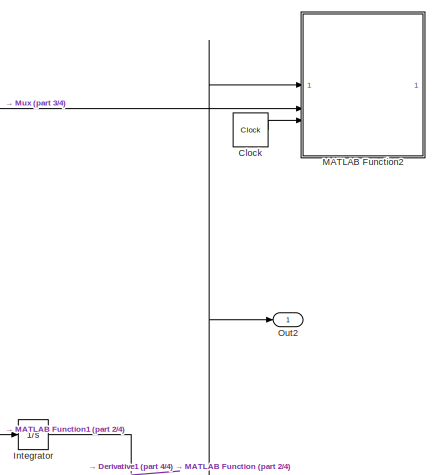
[diagram: root canvas - part 1/4, top right region]
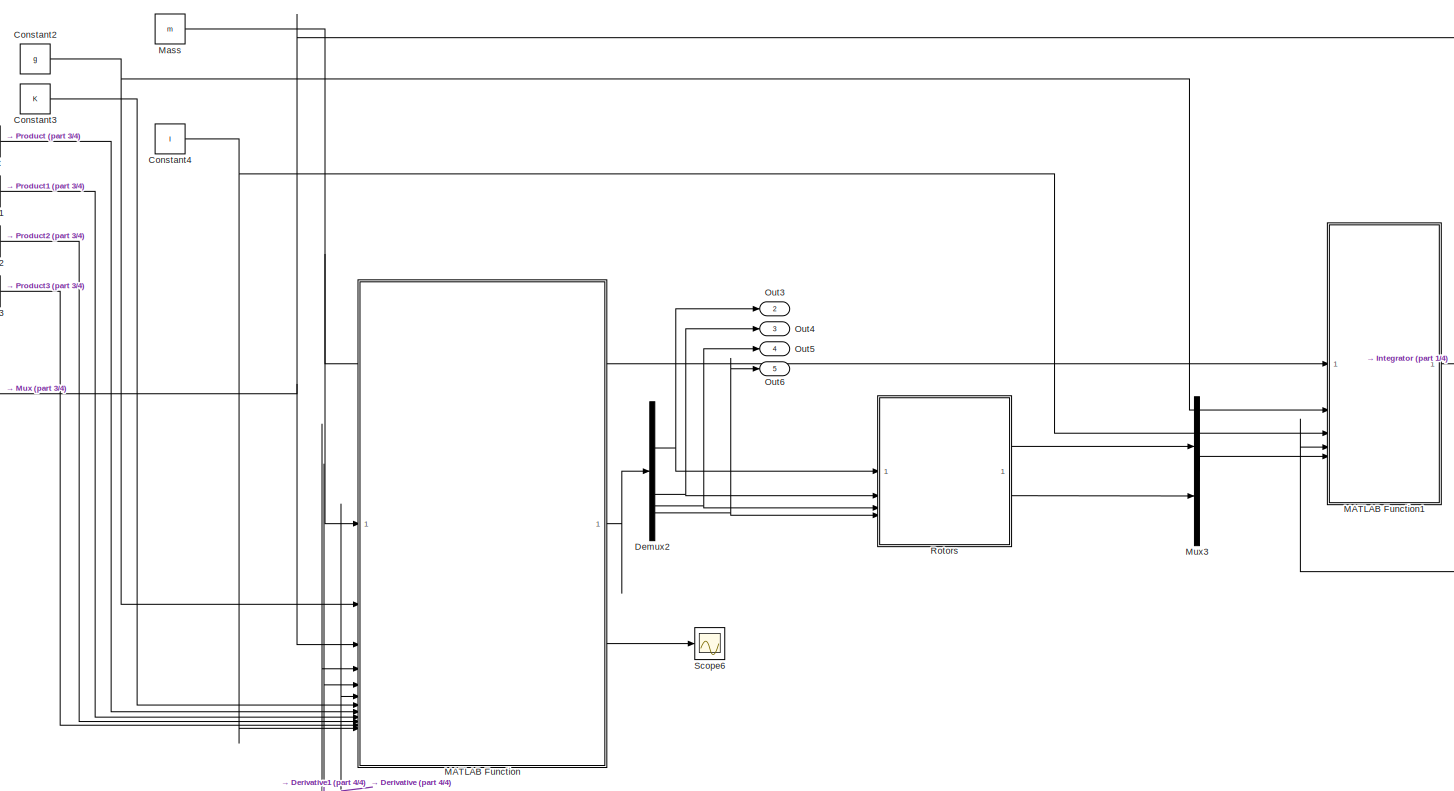
[diagram: root canvas - part 2/4, central region]
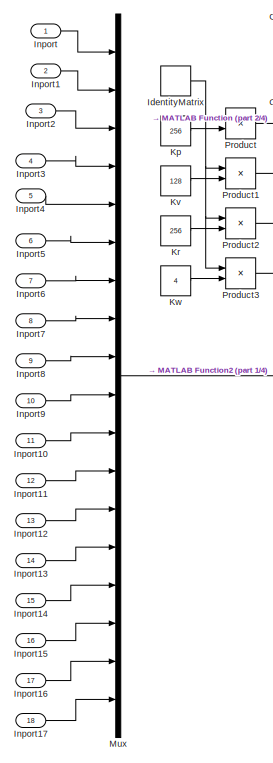
[diagram: root canvas - part 3/4, middle left region]
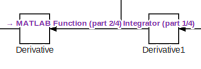
[diagram: root canvas - part 4/4, bottom center region]
MODEL slx_ebe0cf1c29b8
KIND model
CONFIG AbsTol = auto
CONFIG EnableMultiTasking = off
CONFIG FixedStep = timestep
CONFIG MaxStep = auto
CONFIG MinStep = auto
CONFIG RelTol = 1e-3
CONFIG SampleTimeConstraint = Unconstrained
CONFIG SolverName = FixedStepAuto
CONFIG StartTime = 0.0
CONFIG StopTime = SimulationTime
BLOCK [Clock] Clock
BLOCK [Constant] Constant2
  Value = g
BLOCK [Constant] Constant3
  Value = K
BLOCK [Constant] Constant4
  Value = I
BLOCK [Demux] Demux2
BLOCK [Derivative] Derivative
  NameLocation = top
BLOCK [Derivative] Derivative1
  NameLocation = top
BLOCK [IdentityMatrix] IdentityMatrix
  OutputDimensions = 3
BLOCK [Inport] Inport
BLOCK [Inport] Inport1
  Port = 2
BLOCK [Inport] Inport10
  Port = 11
BLOCK [Inport] Inport11
  Port = 12
BLOCK [Inport] Inport12
  Port = 13
BLOCK [Inport] Inport13
  Port = 14
BLOCK [Inport] Inport14
  Port = 15
BLOCK [Inport] Inport15
  Port = 16
BLOCK [Inport] Inport16
  Port = 17
BLOCK [Inport] Inport17
  Port = 18
BLOCK [Inport] Inport2
  Port = 3
BLOCK [Inport] Inport3
  Port = 4
BLOCK [Inport] Inport4
  Port = 5
BLOCK [Inport] Inport5
  Port = 6
BLOCK [Inport] Inport6
  Port = 7
BLOCK [Inport] Inport7
  Port = 8
BLOCK [Inport] Inport8
  Port = 9
BLOCK [Inport] Inport9
  Port = 10
BLOCK [Integrator] Integrator
  InitialCondition = [0;0;0;0;0;0;1;0;0;0;1;0;0;0;1;0;0;0]
BLOCK [Constant] Kp
  Value = 256
BLOCK [Constant] Kr
  Value = 256
BLOCK [Constant] Kv
  Value = 128
BLOCK [Constant] Kw
  Value = 4
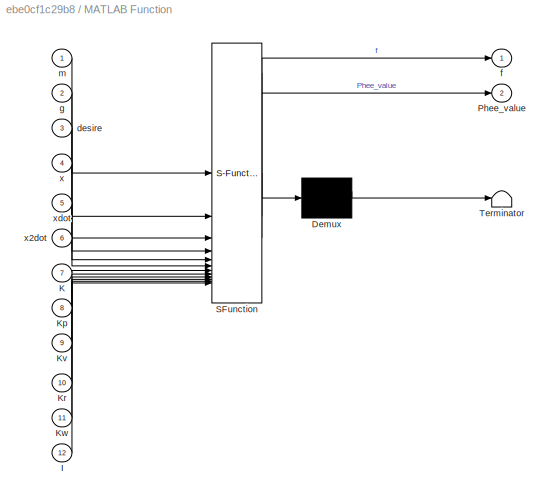
BLOCK [SubSystem] MATLAB Function
  ErrorFcn = Stateflow.Translate.translate
  PermitHierarchicalResolution = ExplicitOnly
  SFBlockType = MATLAB Function
  TreatAsAtomicUnit = on
BLOCK [Demux] MATLAB Function/ Demux 
  Outputs = 1
BLOCK [S-Function] MATLAB Function/ SFunction 
  EnableBusSupport = off
  FunctionName = sf_sfun
  PortCounts = [12 3]
  SFcnIsStateOwnerBlock = off
  SFunctionDeploymentMode = off
  Tag = Stateflow S-Function 2
BLOCK [Terminator] MATLAB Function/ Terminator 
BLOCK [Inport] MATLAB Function/I
  Port = 12
BLOCK [Inport] MATLAB Function/K
  Port = 7
BLOCK [Inport] MATLAB Function/Kp
  Port = 8
BLOCK [Inport] MATLAB Function/Kr
  Port = 10
BLOCK [Inport] MATLAB Function/Kv
  Port = 9
BLOCK [Inport] MATLAB Function/Kw
  Port = 11
BLOCK [Outport] MATLAB Function/Phee_value
  Port = 2
BLOCK [Inport] MATLAB Function/desire
  Port = 3
BLOCK [Outport] MATLAB Function/f
BLOCK [Inport] MATLAB Function/g
  Port = 2
BLOCK [Inport] MATLAB Function/m
BLOCK [Inport] MATLAB Function/x
  Port = 4
BLOCK [Inport] MATLAB Function/x2dot
  Port = 6
BLOCK [Inport] MATLAB Function/xdot
  Port = 5
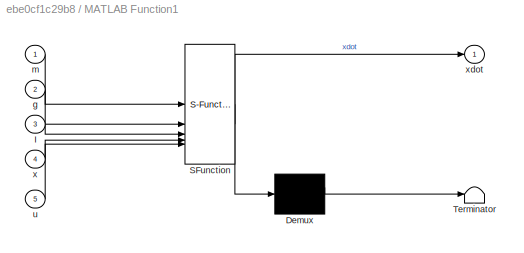
BLOCK [SubSystem] MATLAB Function1
  ErrorFcn = Stateflow.Translate.translate
  PermitHierarchicalResolution = ExplicitOnly
  SFBlockType = MATLAB Function
  TreatAsAtomicUnit = on
BLOCK [Demux] MATLAB Function1/ Demux 
  Outputs = 1
BLOCK [S-Function] MATLAB Function1/ SFunction 
  EnableBusSupport = off
  FunctionName = sf_sfun
  PortCounts = [5 2]
  SFcnIsStateOwnerBlock = off
  SFunctionDeploymentMode = off
  Tag = Stateflow S-Function 1
BLOCK [Terminator] MATLAB Function1/ Terminator 
BLOCK [Inport] MATLAB Function1/I
  Port = 3
BLOCK [Inport] MATLAB Function1/g
  Port = 2
BLOCK [Inport] MATLAB Function1/m
BLOCK [Inport] MATLAB Function1/u
  Port = 5
BLOCK [Inport] MATLAB Function1/x
  Port = 4
BLOCK [Outport] MATLAB Function1/xdot
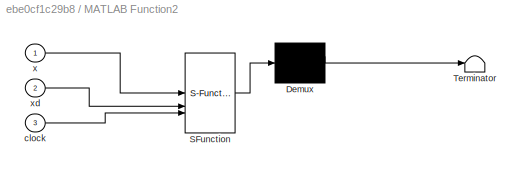
BLOCK [SubSystem] MATLAB Function2
  ErrorFcn = Stateflow.Translate.translate
  PermitHierarchicalResolution = ExplicitOnly
  SFBlockType = MATLAB Function
  TreatAsAtomicUnit = on
BLOCK [Demux] MATLAB Function2/ Demux 
  Outputs = 1
BLOCK [S-Function] MATLAB Function2/ SFunction 
  EnableBusSupport = off
  FunctionName = sf_sfun
  PortCounts = [3 1]
  SFcnIsStateOwnerBlock = off
  SFunctionDeploymentMode = off
  Tag = Stateflow S-Function 3
BLOCK [Terminator] MATLAB Function2/ Terminator 
BLOCK [Inport] MATLAB Function2/clock
  Port = 3
BLOCK [Inport] MATLAB Function2/x
BLOCK [Inport] MATLAB Function2/xd
  Port = 2
BLOCK [Constant] Mass
  Value = m
BLOCK [Mux] Mux
  DisplayOption = bar
  Inputs = 18
BLOCK [Mux] Mux3
  DisplayOption = bar
  Inputs = 2
BLOCK [Outport] Out2
BLOCK [Outport] Out3
  Port = 2
BLOCK [Outport] Out4
  Port = 3
BLOCK [Outport] Out5
  Port = 4
BLOCK [Outport] Out6
  Port = 5
BLOCK [Product] Product
BLOCK [Product] Product1
BLOCK [Product] Product2
BLOCK [Product] Product3
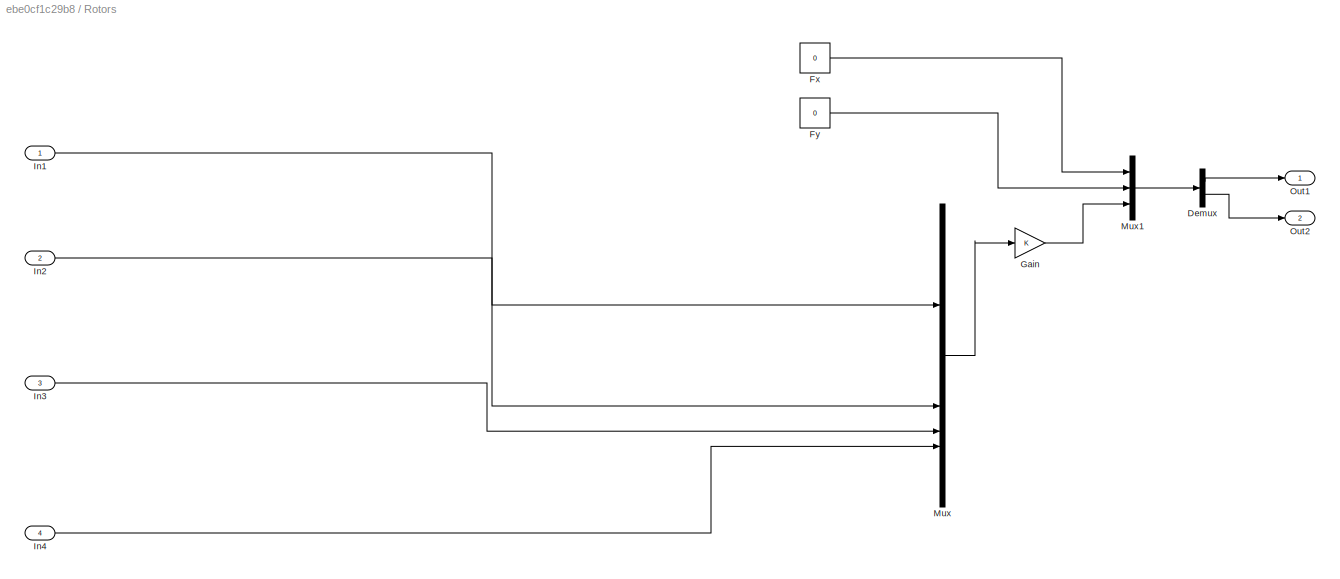
BLOCK [SubSystem] Rotors
BLOCK [Demux] Rotors/Demux
  Outputs = 2
BLOCK [Constant] Rotors/Fx
  Value = 0
BLOCK [Constant] Rotors/Fy
  Value = 0
BLOCK [Gain] Rotors/Gain
  Gain = K
  Multiplication = Matrix(K*u) (u vector)
BLOCK [Inport] Rotors/In1
BLOCK [Inport] Rotors/In2
  Port = 2
BLOCK [Inport] Rotors/In3
  Port = 3
BLOCK [Inport] Rotors/In4
  Port = 4
BLOCK [Mux] Rotors/Mux
  DisplayOption = bar
BLOCK [Mux] Rotors/Mux1
  DisplayOption = bar
  Inputs = 3
BLOCK [Outport] Rotors/Out1
BLOCK [Outport] Rotors/Out2
  Port = 2
BLOCK [Scope] Scope6
  ActiveDisplayYMaximum = -0.10480685049587157
  ActiveDisplayYMinimum = -0.44275151158705367
  DataLoggingVariableName = ScopeData1
  Floating = off
  GraphicalSettings = {"AxesScalingProperties":{"AlignXAxis":"Center","AlignYAxis":"Center","AutoScaleXAxisLimits":false,"AxesScaling":"Manual","AxesScalingNumUpdates":10,"ExpandOnly":true,"ScaleAxesLimitsAtStop":false,"XAxisDataRange":100,"YAxisDataRange":80},"DisplayProperties":{"ColorOrder":["auto","auto","auto","auto","auto","auto","auto","auto","auto","auto","auto","auto","auto","auto","auto","auto","auto","auto",...<+1982ch>
  MultipleDisplayCache = [{"MaxYLimMag":2.21622,"MaxYLimReal":-0.10480685049587157,"MinYLimMag":0,"MinYLimReal":-0.44275151158705367,"PlotAsMagnitudePhase":false,"ShowGrid":true,"ShowLegend":false,"Title":"%<SignalLabel>","YLabel":""}]
  NumInputPorts = 1
  ScopeFrameLocation = window
  WasSavedAsWebScope = on
  WindowPosition = [680.000000,367.000000,560.000000,420.000000,]
LINE Clock:1 -> MATLAB Function2:3
NET Constant2:1 -> MATLAB Function1:2, MATLAB Function:2
LINE Constant3:1 -> MATLAB Function:7
NET Constant4:1 -> MATLAB Function1:3, MATLAB Function:12
NET Demux2:1 -> Out3:1, Rotors:1
NET Demux2:2 -> Out4:1, Rotors:2
NET Demux2:3 -> Out5:1, Rotors:3
NET Demux2:4 -> Out6:1, Rotors:4
NET Derivative1:1 -> Derivative:1, MATLAB Function:5
LINE Derivative:1 -> MATLAB Function:6
NET IdentityMatrix:1 -> Product1:1, Product2:1, Product3:1, Product:1
LINE Inport10:1 -> Mux:11
LINE Inport11:1 -> Mux:12
LINE Inport12:1 -> Mux:13
LINE Inport13:1 -> Mux:14
LINE Inport14:1 -> Mux:15
LINE Inport15:1 -> Mux:16
LINE Inport16:1 -> Mux:17
LINE Inport17:1 -> Mux:18
LINE Inport1:1 -> Mux:2
LINE Inport2:1 -> Mux:3
LINE Inport3:1 -> Mux:4
LINE Inport4:1 -> Mux:5
LINE Inport5:1 -> Mux:6
LINE Inport6:1 -> Mux:7
LINE Inport7:1 -> Mux:8
LINE Inport8:1 -> Mux:9
LINE Inport9:1 -> Mux:10
LINE Inport:1 -> Mux:1
NET Integrator:1 -> Derivative1:1, MATLAB Function1:4, MATLAB Function2:1, MATLAB Function:4, Out2:1
LINE Kp:1 -> Product:2
LINE Kr:1 -> Product2:2
LINE Kv:1 -> Product1:2
LINE Kw:1 -> Product3:2
LINE MATLAB Function1:1 -> Integrator:1
LINE MATLAB Function:1 -> Demux2:1
LINE MATLAB Function:2 -> Scope6:1
NET Mass:1 -> MATLAB Function1:1, MATLAB Function:1
LINE Mux3:1 -> MATLAB Function1:5
NET Mux:1 -> MATLAB Function2:2, MATLAB Function:3
LINE Product1:1 -> MATLAB Function:9
LINE Product2:1 -> MATLAB Function:10
LINE Product3:1 -> MATLAB Function:11
LINE Product:1 -> MATLAB Function:8
LINE Rotors/Demux:1 -> Rotors/Out1:1
LINE Rotors/Demux:2 -> Rotors/Out2:1
LINE Rotors/Fx:1 -> Rotors/Mux1:1
LINE Rotors/Fy:1 -> Rotors/Mux1:2
LINE Rotors/Gain:1 -> Rotors/Mux1:3
LINE Rotors/In1:1 -> Rotors/Mux:1
LINE Rotors/In2:1 -> Rotors/Mux:2
LINE Rotors/In3:1 -> Rotors/Mux:3
LINE Rotors/In4:1 -> Rotors/Mux:4
LINE Rotors/Mux1:1 -> Rotors/Demux:1
LINE Rotors/Mux:1 -> Rotors/Gain:1
LINE Rotors:1 -> Mux3:1
LINE Rotors:2 -> Mux3:2
note: NET lines group one-source signal fan-out (src -> all destinations, sorted); 1:1 wires keep LINE
CHART MATLAB Function1 states=1 transitions=1
  STATE_LABEL 'eML_blk_kernel()'
  STATE_LABEL 'SCRIPT:\nfunction xdot = fcn(m,g,I,x,u)\n\n% extract the x-vextor\np = x(1:3,1);\nv = x(4:6,1);\nR = reshape(x(7:15,1),3,3);\nomega = x(16:18,1);\n\n%control signal\nf = u(3,1);\nM = u(4:6,1);\n\ne3 = [0;0;1];\n\nxdot = zeros(size(x));\n\nxdot(1:3,1) = v;\nxdot(4:6,1) = g*e3 - 1/m*f*R*e3;\n\nRdot = R*hatmap(omega);\nxdot(7:15,1) = Rdot(:);\n% \\ use for optimization\nxdot(16:18,1) = I\\(M - cross(omega,I*omega));\n\n\n\n\nend'
CHART MATLAB Function states=1 transitions=1
  STATE_LABEL 'eML_blk_kernel()'
  STATE_LABEL 'SCRIPT:\nfunction [f,Phee_value]  = fcn(m,g,desire,x,xdot,x2dot,K,Kp,Kv,Kr,Kw,I)\n\n% TODO: implement\nxt = desire(1);\nyt = desire(2);\nzt = desire(3);\n\ndxt = desire(4);\ndyt = desire(5);\ndzt = desire(6);\n\nddxt = desire(7);\nddyt = desire(8);\nddzt = desire(9);\n\ndddxt = desire(10);\ndddyt = desire(11);\ndddzt = desire(12);\n\nddddxt = desire(13);\nddddyt = desire(14);\nddddzt = desire(15);\n\npsit = desire(16);\nd...<+1102ch>'
CHART MATLAB Function2 states=1 transitions=1
  STATE_LABEL 'eML_blk_kernel()'
  STATE_LABEL 'SCRIPT:\nfunction api_calling(x, xd, clock)\n\ncoder.extrinsic(\'weboptions\', \'webwrite\', \'datetime\');\n\n% Prepare payload for API\n% url = \'http://localhost:3000/drone-location\';\nurl = \'http://192.168.10.181:8080/api/v1/attack\';\nlat_init = 14.303128109956759;\nlong_init = 1.011545747324440e+02;\nalt_init = 38;\n\n% Convert from NED to LLA\nrealPosition = ned2lla(x(1:3,1)\', [lat_init long_init alt_init], "el...<+1092ch>'
CHART  states=0 transitions=0
CHART  states=0 transitions=0
CHART  states=0 transitions=0
